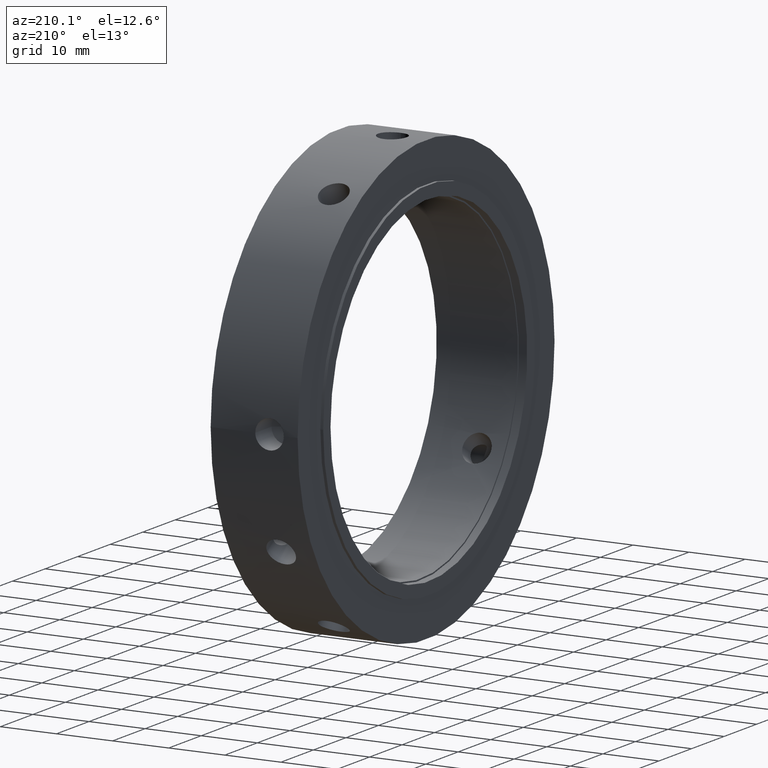
[diagram: clean part render]
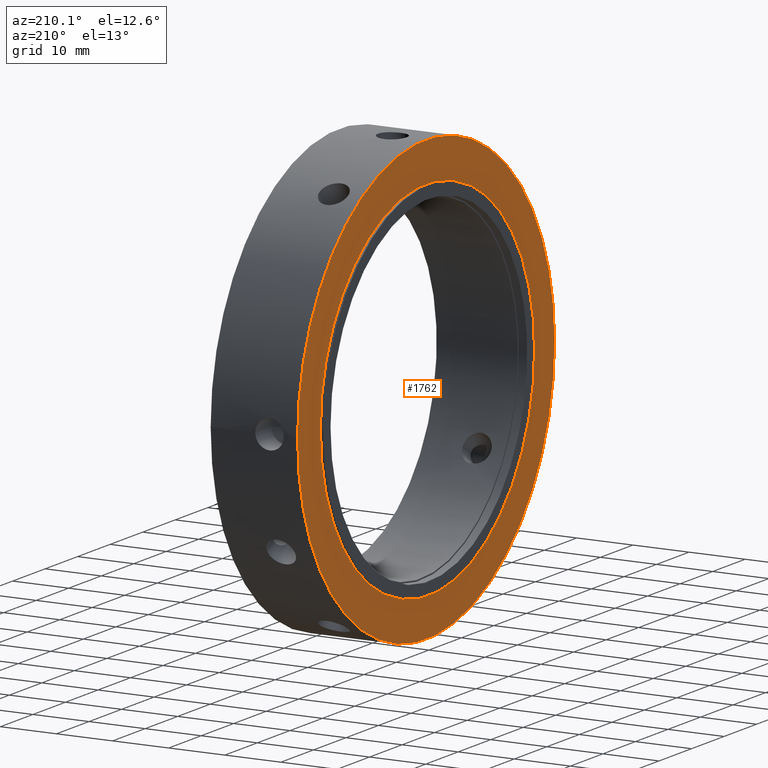
[diagram: same view with one face highlighted and labeled with its STEP entity id]
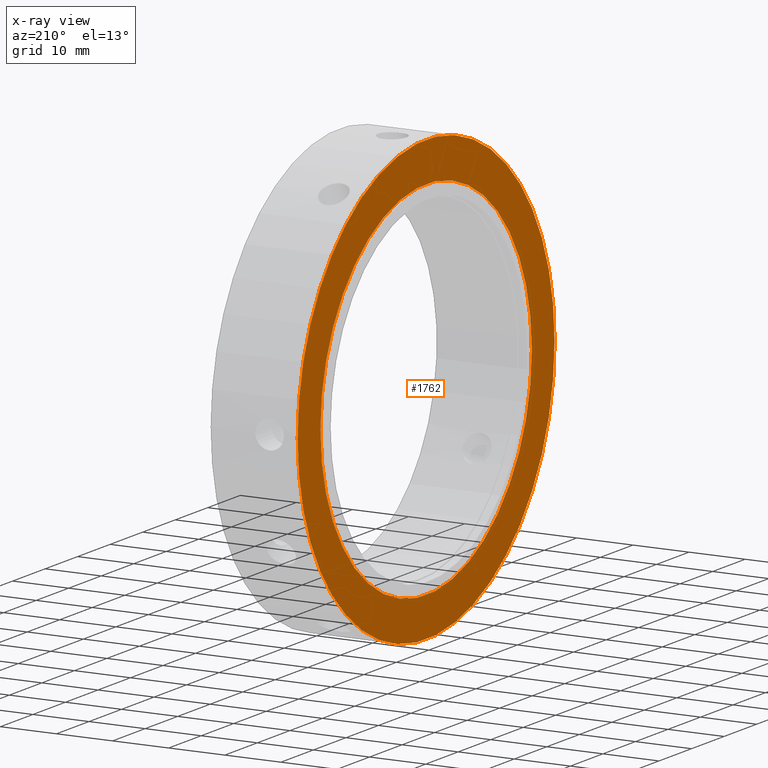
[diagram: x-ray of the same camera — body ghosted, the highlighted face saturated]
A machine part, auxiliary view. The second image highlights one B-rep face of the part: STEP entity #1762.
The next image is the same camera in x-ray: the body ghosted, the highlighted face saturated — about 0% of this face is hidden behind the body in this view.
In plain terms, the highlighted planar face has unit normal (-1, 0, 0).
Its self-contained STEP definition (entity closure, byte-faithful):
#1728=CARTESIAN_POINT('',(0.499999999999994,32.499999999999993,0.0));
#1729=VERTEX_POINT('',#1728);
#1730=CARTESIAN_POINT('',(0.499999999999994,0.0,0.0));
#1731=DIRECTION('',(1.0,0.0,0.0));
#1732=DIRECTION('',(0.0,1.0,0.0));
#1733=AXIS2_PLACEMENT_3D('',#1730,#1731,#1732);
#1734=CIRCLE('',#1733,32.499999999999993);
#1735=EDGE_CURVE('',#1729,#1729,#1734,.T.);
#1743=CARTESIAN_POINT('',(0.499999999999992,36.0,0.0));
#1744=DIRECTION('',(-1.0,0.0,0.0));
#1745=DIRECTION('',(0.0,0.0,1.0));
#1746=AXIS2_PLACEMENT_3D('',#1743,#1744,#1745);
#1747=PLANE('',#1746);
#1748=CARTESIAN_POINT('',(0.499999999999989,39.5,0.0));
#1749=VERTEX_POINT('',#1748);
#1750=CARTESIAN_POINT('',(0.499999999999989,0.0,0.0));
#1751=DIRECTION('',(1.0,0.0,0.0));
#1752=DIRECTION('',(0.0,1.0,0.0));
#1753=AXIS2_PLACEMENT_3D('',#1750,#1751,#1752);
#1754=CIRCLE('',#1753,39.5);
#1755=EDGE_CURVE('',#1749,#1749,#1754,.T.);
#1756=ORIENTED_EDGE('',*,*,#1755,.F.);
#1757=EDGE_LOOP('',(#1756));
#1758=FACE_OUTER_BOUND('',#1757,.T.);
#1759=ORIENTED_EDGE('',*,*,#1735,.T.);
#1760=EDGE_LOOP('',(#1759));
#1761=FACE_BOUND('',#1760,.T.);
#1762=ADVANCED_FACE('',(#1758,#1761),#1747,.T.);